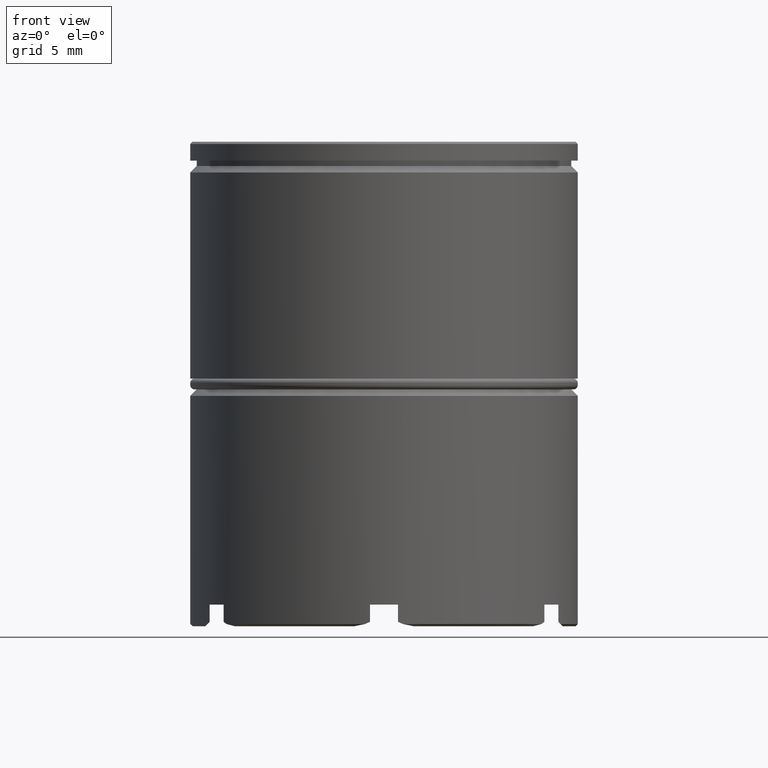
[diagram: clean part render]
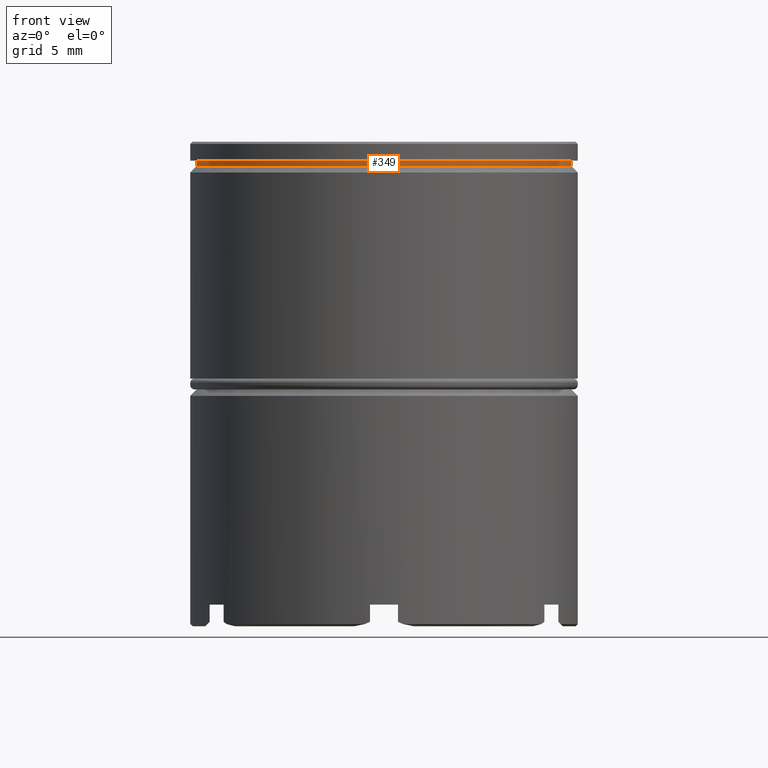
[diagram: same view with one face highlighted and labeled with its STEP entity id]
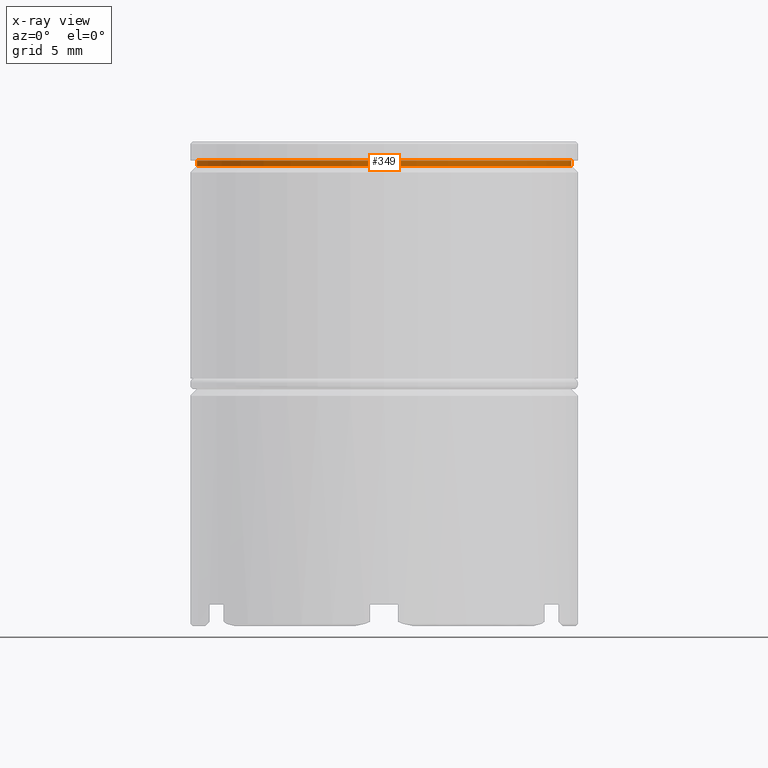
[diagram: x-ray of the same camera — body ghosted, the highlighted face saturated]
A machine part, front view. The second image highlights one B-rep face of the part: STEP entity #349.
The next image is the same camera in x-ray: the body ghosted, the highlighted face saturated — about 0% of this face is hidden behind the body in this view.
In plain terms, the highlighted cylindrical surface (partial cylindrical patch) has radius 8.7 mm, axis along (-0, -0, 1).
Its self-contained STEP definition (entity closure, byte-faithful):
#29 = DIRECTION ( 'NONE',  ( 1.000000000000000000, 0.000000000000000000, 0.000000000000000000 ) ) ;
#50 = CARTESIAN_POINT ( 'NONE',  ( 0.000000000000000000, 0.000000000000000000, -1.125000000000000222 ) ) ;
#70 = CARTESIAN_POINT ( 'NONE',  ( 0.000000000000000000, 0.000000000000000000, -0.8749999999999998890 ) ) ;
#110 = LINE ( 'NONE', #1367, #1394 ) ;
#155 = CARTESIAN_POINT ( 'NONE',  ( -8.699999999999999289, 1.065442715258197248E-15, -1.125000000000000222 ) ) ;
#179 = EDGE_CURVE ( 'NONE', #669, #1142, #1164, .T. ) ;
#307 = CARTESIAN_POINT ( 'NONE',  ( 8.699999999999999289, 0.000000000000000000, -1.125000000000000222 ) ) ;
#349 = ADVANCED_FACE ( 'NONE', ( #547 ), #1186, .T. ) ;
#361 = EDGE_CURVE ( 'NONE', #1360, #1466, #844, .T. ) ;
#445 = CARTESIAN_POINT ( 'NONE',  ( 8.699999999999999289, 0.000000000000000000, -0.8749999999999998890 ) ) ;
#450 = DIRECTION ( 'NONE',  ( 1.000000000000000000, 0.000000000000000000, 0.000000000000000000 ) ) ;
#547 = FACE_OUTER_BOUND ( 'NONE', #1516, .T. ) ;
#558 = DIRECTION ( 'NONE',  ( -0.000000000000000000, -0.000000000000000000, 1.000000000000000000 ) ) ;
#636 = AXIS2_PLACEMENT_3D ( 'NONE', #50, #558, #29 ) ;
#654 = ORIENTED_EDGE ( 'NONE', *, *, #835, .F. ) ;
#669 = VERTEX_POINT ( 'NONE', #1352 ) ;
#779 = ORIENTED_EDGE ( 'NONE', *, *, #361, .T. ) ;
#802 = CARTESIAN_POINT ( 'NONE',  ( 0.000000000000000000, 0.000000000000000000, 0.000000000000000000 ) ) ;
#835 = EDGE_CURVE ( 'NONE', #1360, #669, #110, .T. ) ;
#844 = CIRCLE ( 'NONE', #636, 8.699999999999999289 ) ;
#868 = AXIS2_PLACEMENT_3D ( 'NONE', #802, #1571, #1424 ) ;
#895 = VECTOR ( 'NONE', #939, 1000.000000000000000 ) ;
#939 = DIRECTION ( 'NONE',  ( -0.000000000000000000, -0.000000000000000000, 1.000000000000000000 ) ) ;
#994 = DIRECTION ( 'NONE',  ( -0.000000000000000000, -0.000000000000000000, 1.000000000000000000 ) ) ;
#1052 = CARTESIAN_POINT ( 'NONE',  ( 8.699999999999999289, 0.000000000000000000, 0.000000000000000000 ) ) ;
#1142 = VERTEX_POINT ( 'NONE', #445 ) ;
#1164 = CIRCLE ( 'NONE', #1259, 8.699999999999999289 ) ;
#1186 = CYLINDRICAL_SURFACE ( 'NONE', #868, 8.699999999999999289 ) ;
#1259 = AXIS2_PLACEMENT_3D ( 'NONE', #70, #1578, #450 ) ;
#1352 = CARTESIAN_POINT ( 'NONE',  ( -8.699999999999999289, 1.065442715258197248E-15, -0.8749999999999998890 ) ) ;
#1360 = VERTEX_POINT ( 'NONE', #155 ) ;
#1367 = CARTESIAN_POINT ( 'NONE',  ( -8.699999999999999289, 1.065442715258197248E-15, 0.000000000000000000 ) ) ;
#1394 = VECTOR ( 'NONE', #994, 1000.000000000000000 ) ;
#1424 = DIRECTION ( 'NONE',  ( 1.000000000000000000, 0.000000000000000000, 0.000000000000000000 ) ) ;
#1447 = EDGE_CURVE ( 'NONE', #1466, #1142, #1554, .T. ) ;
#1466 = VERTEX_POINT ( 'NONE', #307 ) ;
#1480 = ORIENTED_EDGE ( 'NONE', *, *, #1447, .T. ) ;
#1516 = EDGE_LOOP ( 'NONE', ( #654, #779, #1480, #1582 ) ) ;
#1554 = LINE ( 'NONE', #1052, #895 ) ;
#1571 = DIRECTION ( 'NONE',  ( -0.000000000000000000, -0.000000000000000000, 1.000000000000000000 ) ) ;
#1578 = DIRECTION ( 'NONE',  ( -0.000000000000000000, -0.000000000000000000, 1.000000000000000000 ) ) ;
#1582 = ORIENTED_EDGE ( 'NONE', *, *, #179, .F. ) ;